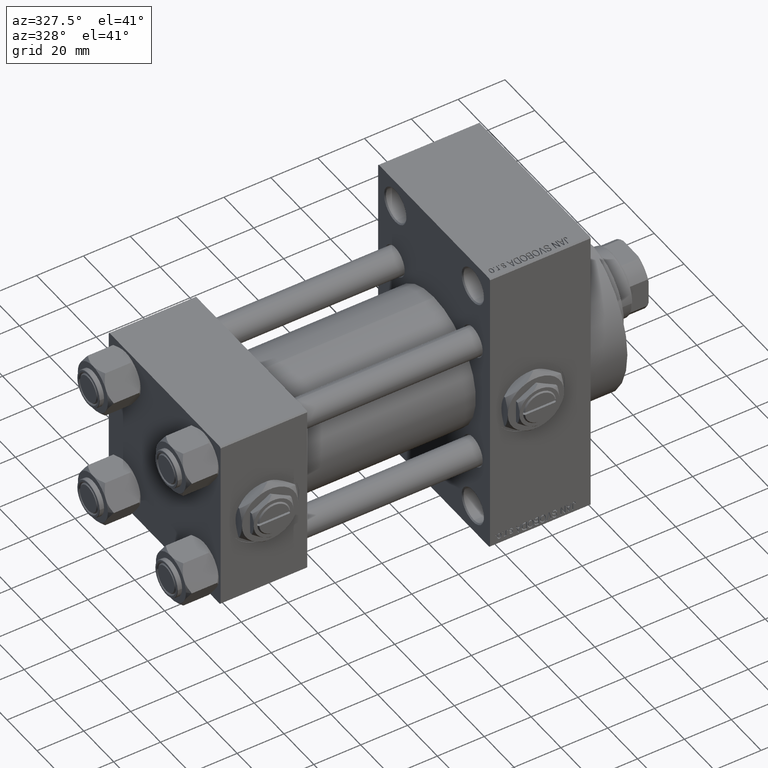
[diagram: clean part render]
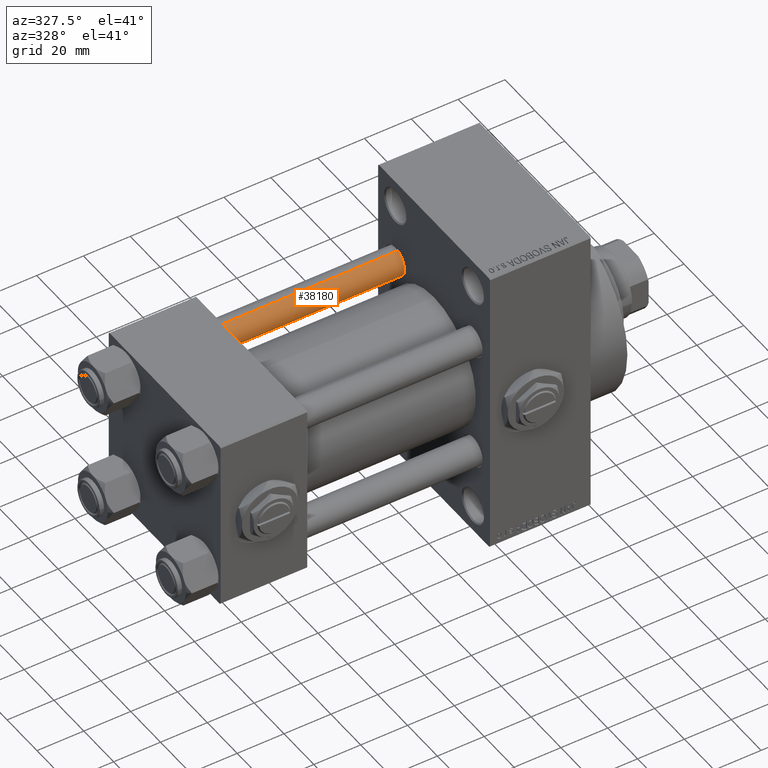
[diagram: same view with one face highlighted and labeled with its STEP entity id]
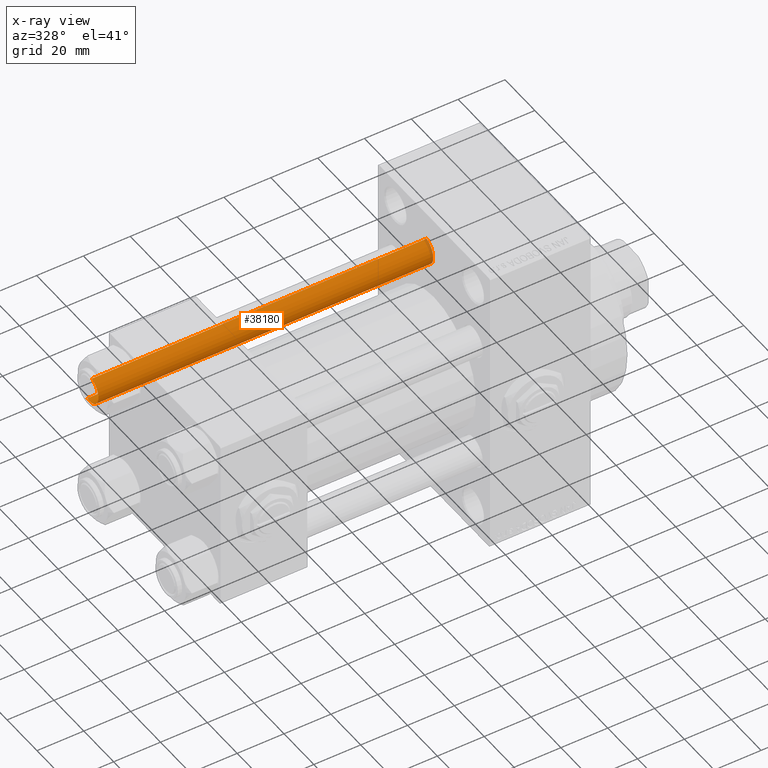
[diagram: x-ray of the same camera — body ghosted, the highlighted face saturated]
A machine part, auxiliary view. The second image highlights one B-rep face of the part: STEP entity #38180.
The next image is the same camera in x-ray: the body ghosted, the highlighted face saturated — about 1% of this face is hidden behind the body in this view.
In plain terms, the highlighted cylindrical surface (edge-blend (fillet) strip) has radius 6 mm, axis along (-1, -0, 0).
Its self-contained STEP definition (entity closure, byte-faithful):
#1888 = CIRCLE ( 'NONE', #14632, 6.000000000000000888 ) ;
#2912 = ORIENTED_EDGE ( 'NONE', *, *, #3690, .T. ) ;
#3690 = EDGE_CURVE ( 'NONE', #19097, #36532, #35146, .T. ) ;
#4059 = ORIENTED_EDGE ( 'NONE', *, *, #11429, .T. ) ;
#4615 = CARTESIAN_POINT ( 'NONE',  ( 6.000000000000000888, 7.347880794884120722E-16, 0.5000000000000004441 ) ) ;
#5240 = EDGE_LOOP ( 'NONE', ( #19010, #4059, #7732, #2912 ) ) ;
#6357 = EDGE_CURVE ( 'NONE', #16114, #19097, #34231, .T. ) ;
#6594 = VERTEX_POINT ( 'NONE', #20855 ) ;
#7732 = ORIENTED_EDGE ( 'NONE', *, *, #6357, .T. ) ;
#11429 = EDGE_CURVE ( 'NONE', #6594, #16114, #1888, .T. ) ;
#11596 = LINE ( 'NONE', #45990, #37847 ) ;
#14565 = DIRECTION ( 'NONE',  ( 0.000000000000000000, 0.000000000000000000, -1.000000000000000000 ) ) ;
#14632 = AXIS2_PLACEMENT_3D ( 'NONE', #41477, #14565, #26009 ) ;
#14967 = CARTESIAN_POINT ( 'NONE',  ( -6.000000000000000888, 0.000000000000000000, 0.5000000000000004441 ) ) ;
#15246 = VECTOR ( 'NONE', #32143, 1000.000000000000000 ) ;
#16114 = VERTEX_POINT ( 'NONE', #36323 ) ;
#18595 = CARTESIAN_POINT ( 'NONE',  ( 0.000000000000000000, 0.000000000000000000, 144.0000000000000000 ) ) ;
#19010 = ORIENTED_EDGE ( 'NONE', *, *, #19783, .F. ) ;
#19097 = VERTEX_POINT ( 'NONE', #14967 ) ;
#19783 = EDGE_CURVE ( 'NONE', #6594, #36532, #11596, .T. ) ;
#20855 = CARTESIAN_POINT ( 'NONE',  ( 6.000000000000000888, 7.347880794884120722E-16, 143.5000000000000000 ) ) ;
#22818 = DIRECTION ( 'NONE',  ( -0.000000000000000000, -0.000000000000000000, -1.000000000000000000 ) ) ;
#23668 = AXIS2_PLACEMENT_3D ( 'NONE', #18595, #22818, #38032 ) ;
#25695 = DIRECTION ( 'NONE',  ( -0.000000000000000000, -0.000000000000000000, 1.000000000000000000 ) ) ;
#26009 = DIRECTION ( 'NONE',  ( 1.000000000000000000, 0.000000000000000000, 0.000000000000000000 ) ) ;
#30314 = FACE_OUTER_BOUND ( 'NONE', #5240, .T. ) ;
#32143 = DIRECTION ( 'NONE',  ( -0.000000000000000000, -0.000000000000000000, -1.000000000000000000 ) ) ;
#34231 = LINE ( 'NONE', #39379, #15246 ) ;
#35146 = CIRCLE ( 'NONE', #47870, 6.000000000000000888 ) ;
#36323 = CARTESIAN_POINT ( 'NONE',  ( -6.000000000000000888, 0.000000000000000000, 143.5000000000000000 ) ) ;
#36532 = VERTEX_POINT ( 'NONE', #4615 ) ;
#37847 = VECTOR ( 'NONE', #49237, 1000.000000000000000 ) ;
#37910 = DIRECTION ( 'NONE',  ( 1.000000000000000000, 0.000000000000000000, 0.000000000000000000 ) ) ;
#38032 = DIRECTION ( 'NONE',  ( -1.000000000000000000, 0.000000000000000000, 0.000000000000000000 ) ) ;
#38180 = ADVANCED_FACE ( 'NONE', ( #30314 ), #41040, .T. ) ;
#39379 = CARTESIAN_POINT ( 'NONE',  ( -6.000000000000000888, 0.000000000000000000, 144.0000000000000000 ) ) ;
#41040 = CYLINDRICAL_SURFACE ( 'NONE', #23668, 6.000000000000000888 ) ;
#41477 = CARTESIAN_POINT ( 'NONE',  ( 0.000000000000000000, 0.000000000000000000, 143.5000000000000000 ) ) ;
#45990 = CARTESIAN_POINT ( 'NONE',  ( 6.000000000000000888, 7.347880794884120722E-16, 144.0000000000000000 ) ) ;
#47656 = CARTESIAN_POINT ( 'NONE',  ( 0.000000000000000000, 0.000000000000000000, 0.5000000000000004441 ) ) ;
#47870 = AXIS2_PLACEMENT_3D ( 'NONE', #47656, #25695, #37910 ) ;
#49237 = DIRECTION ( 'NONE',  ( -0.000000000000000000, -0.000000000000000000, -1.000000000000000000 ) ) ;